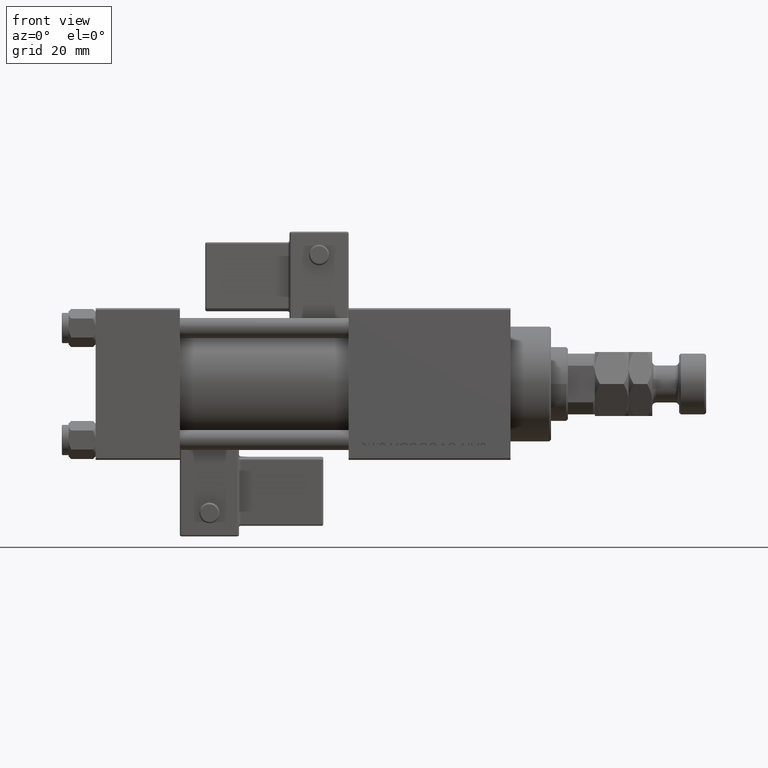
[diagram: clean part render]
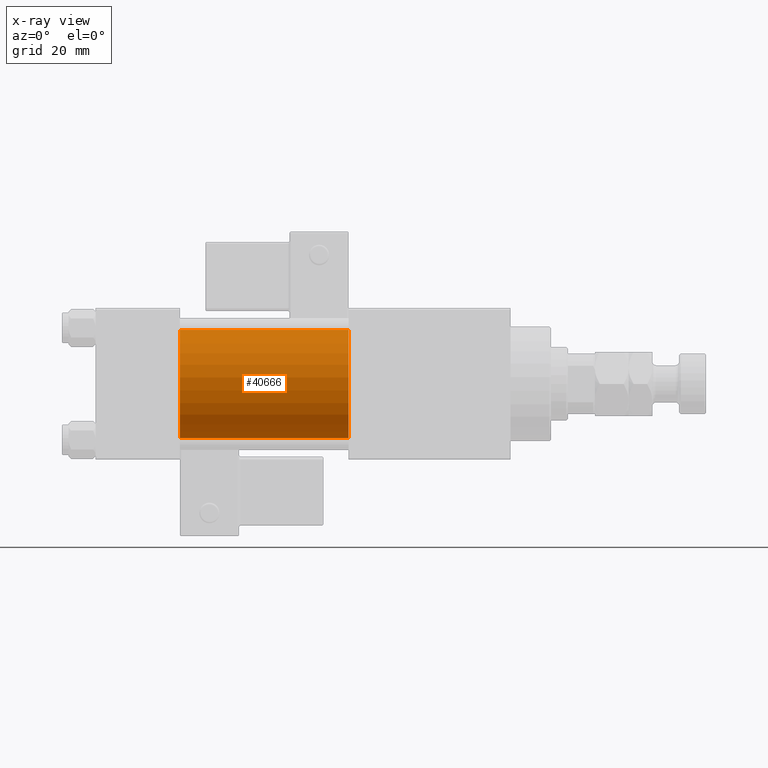
[diagram: x-ray — body ghosted, one internal face saturated and labeled with its STEP entity id]
A machine part, front view, then the same camera in x-ray: the body is ghosted and one INTERNAL B-rep face — a face not visible from any outside direction — is saturated and labeled: STEP entity #40666.
In plain terms, the highlighted cylindrical surface (partial cylindrical patch) has radius 16 mm, axis along (-1, -0, -0).
Its self-contained STEP definition (entity closure, byte-faithful):
#653 = CARTESIAN_POINT ( 'NONE',  ( 75.00000000000001421, -2.602085213965210642E-15, 0.000000000000000000 ) ) ;
#1561 = VECTOR ( 'NONE', #11261, 1000.000000000000000 ) ;
#3958 = FACE_OUTER_BOUND ( 'NONE', #8993, .T. ) ;
#4034 = DIRECTION ( 'NONE',  ( -1.000000000000000000, -0.000000000000000000, -0.000000000000000000 ) ) ;
#4230 = DIRECTION ( 'NONE',  ( 0.000000000000000000, 0.000000000000000000, 1.000000000000000000 ) ) ;
#8612 = AXIS2_PLACEMENT_3D ( 'NONE', #653, #13549, #4230 ) ;
#8983 = EDGE_CURVE ( 'NONE', #44890, #42829, #44720, .T. ) ;
#8993 = EDGE_LOOP ( 'NONE', ( #32591, #9661, #38940, #23816 ) ) ;
#9661 = ORIENTED_EDGE ( 'NONE', *, *, #8983, .T. ) ;
#11261 = DIRECTION ( 'NONE',  ( -1.000000000000000000, -0.000000000000000000, -0.000000000000000000 ) ) ;
#11534 = CARTESIAN_POINT ( 'NONE',  ( 75.00000000000001421, -2.602085213965210642E-15, 16.00000000000000000 ) ) ;
#12772 = DIRECTION ( 'NONE',  ( 1.000000000000000000, 0.000000000000000000, 0.000000000000000000 ) ) ;
#13549 = DIRECTION ( 'NONE',  ( -1.000000000000000000, -0.000000000000000000, -0.000000000000000000 ) ) ;
#16077 = EDGE_CURVE ( 'NONE', #41932, #42829, #34284, .T. ) ;
#19584 = CARTESIAN_POINT ( 'NONE',  ( 25.00000000000000000, -2.602085213965210642E-15, 16.00000000000000000 ) ) ;
#19644 = EDGE_CURVE ( 'NONE', #47391, #41932, #44933, .T. ) ;
#20475 = DIRECTION ( 'NONE',  ( 0.000000000000000000, 0.000000000000000000, -1.000000000000000000 ) ) ;
#21745 = CARTESIAN_POINT ( 'NONE',  ( 25.00000000000000000, -6.426503353294456087E-16, -16.00000000000000000 ) ) ;
#23816 = ORIENTED_EDGE ( 'NONE', *, *, #19644, .F. ) ;
#28486 = CARTESIAN_POINT ( 'NONE',  ( 75.00000000000001421, -6.426503353294456087E-16, -16.00000000000000000 ) ) ;
#31951 = DIRECTION ( 'NONE',  ( 0.000000000000000000, 0.000000000000000000, -1.000000000000000000 ) ) ;
#32579 = CARTESIAN_POINT ( 'NONE',  ( 75.00000000000001421, -2.602085213965210642E-15, 16.00000000000000000 ) ) ;
#32591 = ORIENTED_EDGE ( 'NONE', *, *, #53734, .T. ) ;
#33604 = CARTESIAN_POINT ( 'NONE',  ( 75.00000000000001421, -2.602085213965210642E-15, 0.000000000000000000 ) ) ;
#34284 = CIRCLE ( 'NONE', #36900, 16.00000000000000000 ) ;
#34390 = CYLINDRICAL_SURFACE ( 'NONE', #8612, 16.00000000000000000 ) ;
#36900 = AXIS2_PLACEMENT_3D ( 'NONE', #52796, #44302, #31951 ) ;
#38940 = ORIENTED_EDGE ( 'NONE', *, *, #16077, .F. ) ;
#40328 = CARTESIAN_POINT ( 'NONE',  ( 75.00000000000001421, -6.426503353294456087E-16, -16.00000000000000000 ) ) ;
#40550 = CIRCLE ( 'NONE', #44902, 16.00000000000000000 ) ;
#40666 = ADVANCED_FACE ( 'NONE', ( #3958 ), #34390, .F. ) ;
#41932 = VERTEX_POINT ( 'NONE', #19584 ) ;
#42829 = VERTEX_POINT ( 'NONE', #21745 ) ;
#44302 = DIRECTION ( 'NONE',  ( 1.000000000000000000, 0.000000000000000000, 0.000000000000000000 ) ) ;
#44720 = LINE ( 'NONE', #40328, #1561 ) ;
#44890 = VERTEX_POINT ( 'NONE', #28486 ) ;
#44902 = AXIS2_PLACEMENT_3D ( 'NONE', #33604, #12772, #20475 ) ;
#44933 = LINE ( 'NONE', #32579, #46707 ) ;
#46707 = VECTOR ( 'NONE', #4034, 1000.000000000000000 ) ;
#47391 = VERTEX_POINT ( 'NONE', #11534 ) ;
#52796 = CARTESIAN_POINT ( 'NONE',  ( 25.00000000000000000, -2.602085213965210642E-15, 0.000000000000000000 ) ) ;
#53734 = EDGE_CURVE ( 'NONE', #47391, #44890, #40550, .T. ) ;